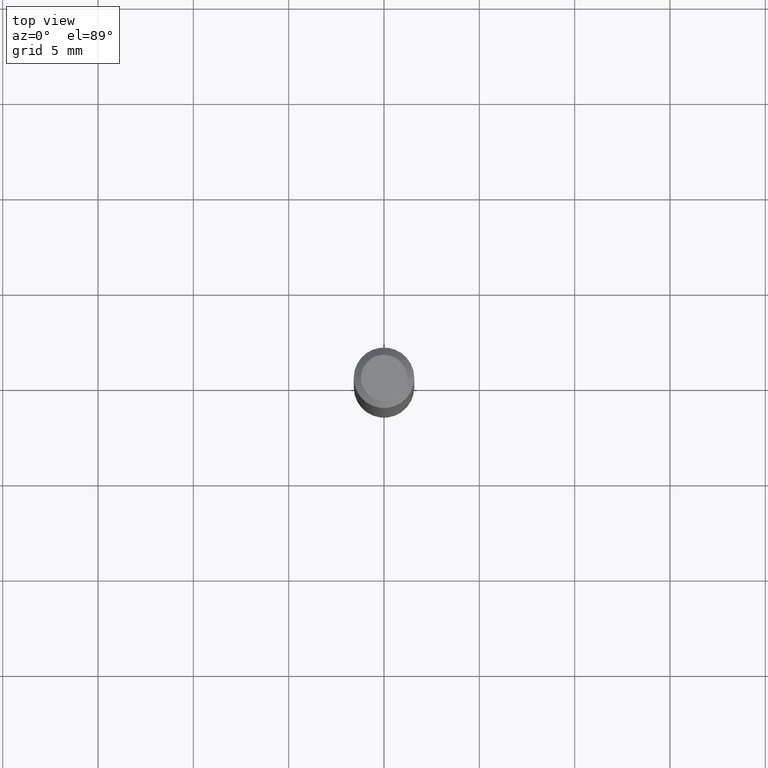
[diagram: clean part render]
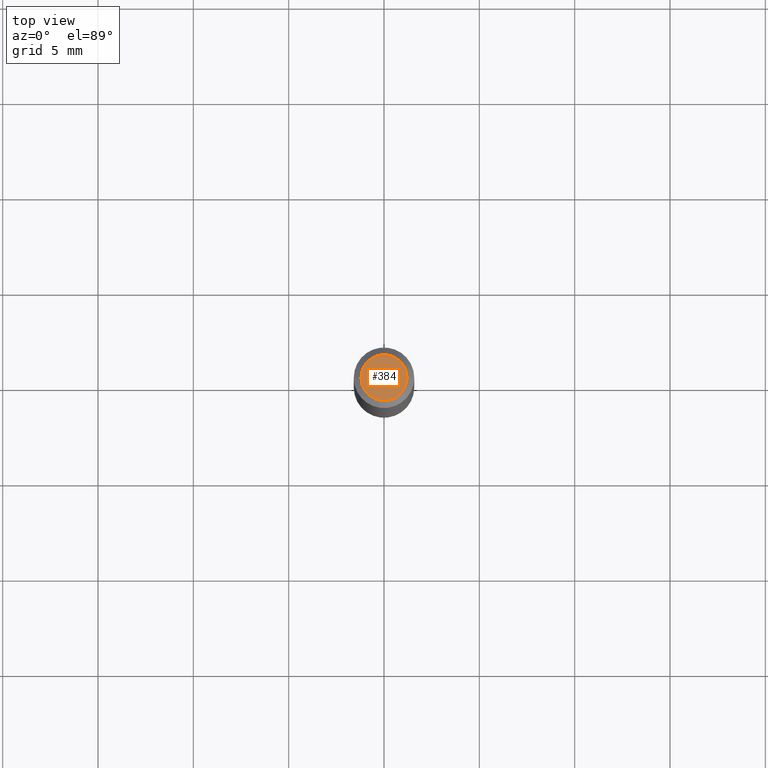
[diagram: same view with one face highlighted and labeled with its STEP entity id]
A machine part, top view. The second image highlights one B-rep face of the part: STEP entity #384.
In plain terms, the highlighted planar face has unit normal (0, -0, -1).
Its self-contained STEP definition (entity closure, byte-faithful):
#16 = DIRECTION ( 'NONE',  ( 1.000000000000000000, -6.982962677686266711E-15, 4.852736867747365086E-29 ) ) ;
#28 = DIRECTION ( 'NONE',  ( 1.000000000000000000, -6.982962677686266711E-15, 4.852736867747365086E-29 ) ) ;
#55 = CARTESIAN_POINT ( 'NONE',  ( -6.680649051745406845E-45, 9.538196290434862081E-31, 2.731847993664263218E-16 ) ) ;
#104 = AXIS2_PLACEMENT_3D ( 'NONE', #55, #140, #16 ) ;
#132 = PLANE ( 'NONE',  #480 ) ;
#140 = DIRECTION ( 'NONE',  ( -2.445468806185136597E-29, 3.491481338843145583E-15, 1.000000000000000000 ) ) ;
#161 = AXIS2_PLACEMENT_3D ( 'NONE', #433, #465, #28 ) ;
#163 = ORIENTED_EDGE ( 'NONE', *, *, #278, .T. ) ;
#166 = EDGE_CURVE ( 'NONE', #171, #316, #326, .T. ) ;
#170 = FACE_OUTER_BOUND ( 'NONE', #231, .T. ) ;
#171 = VERTEX_POINT ( 'NONE', #469 ) ;
#219 = ORIENTED_EDGE ( 'NONE', *, *, #166, .T. ) ;
#231 = EDGE_LOOP ( 'NONE', ( #219, #163 ) ) ;
#270 = CIRCLE ( 'NONE', #104, 0.04750000000000000749 ) ;
#278 = EDGE_CURVE ( 'NONE', #316, #171, #270, .T. ) ;
#290 = CARTESIAN_POINT ( 'NONE',  ( 3.316907271900976589E-16, 0.04750000000000000749, -2.925296391183627249E-17 ) ) ;
#316 = VERTEX_POINT ( 'NONE', #413 ) ;
#326 = CIRCLE ( 'NONE', #161, 0.04750000000000000749 ) ;
#384 = ADVANCED_FACE ( 'NONE', ( #170 ), #132, .F. ) ;
#413 = CARTESIAN_POINT ( 'NONE',  ( 0.04750000000000000749, -4.035134999187568762E-16, 2.731847993664288856E-16 ) ) ;
#432 = DIRECTION ( 'NONE',  ( 2.438088387897960049E-29, -3.491481338843145188E-15, -1.000000000000000000 ) ) ;
#433 = CARTESIAN_POINT ( 'NONE',  ( -6.680649051745406845E-45, 9.538196290434862081E-31, 2.731847993664263218E-16 ) ) ;
#465 = DIRECTION ( 'NONE',  ( -2.445468806185136597E-29, 3.491481338843145583E-15, 1.000000000000000000 ) ) ;
#469 = CARTESIAN_POINT ( 'NONE',  ( -0.04750000000000000749, 3.578768372314221353E-16, 2.731847993664239060E-16 ) ) ;
#480 = AXIS2_PLACEMENT_3D ( 'NONE', #290, #432, #506 ) ;
#506 = DIRECTION ( 'NONE',  ( -1.000000000000000000, 6.982962677686265922E-15, -4.876176775795935793E-29 ) ) ;